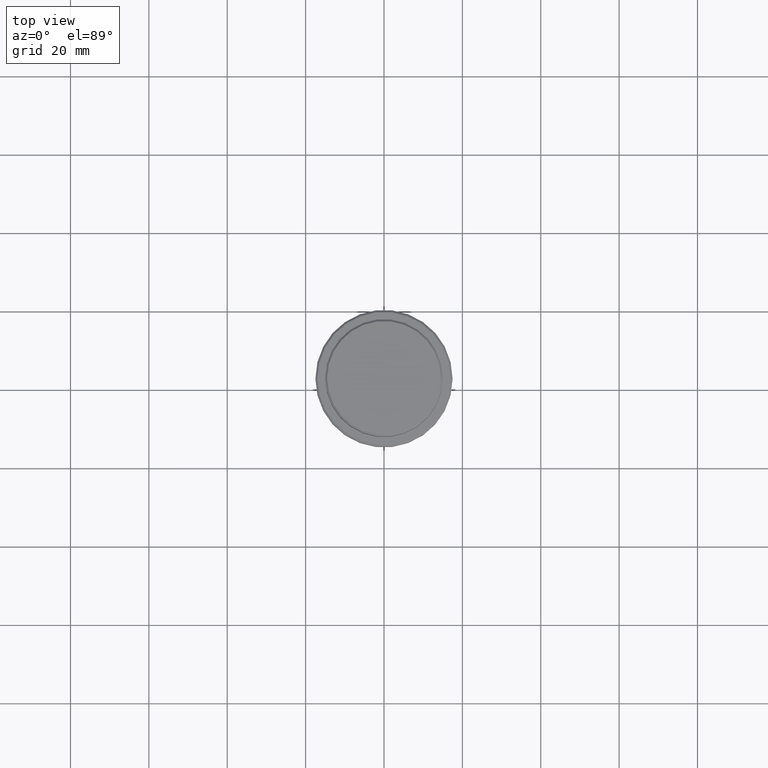
[diagram: clean part render]
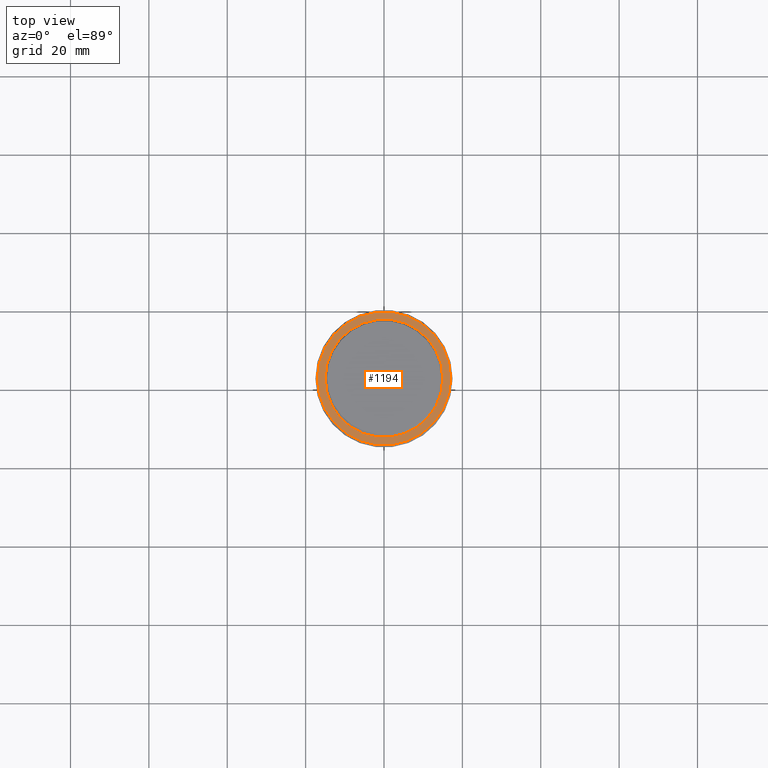
[diagram: same view with one face highlighted and labeled with its STEP entity id]
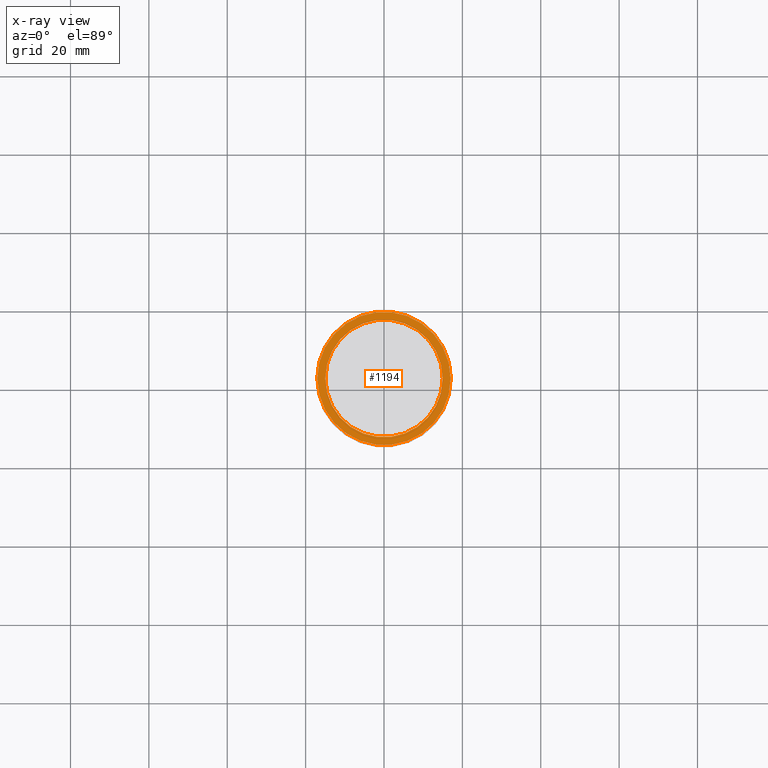
[diagram: x-ray of the same camera — body ghosted, the highlighted face saturated]
A machine part, top view. The second image highlights one B-rep face of the part: STEP entity #1194.
The next image is the same camera in x-ray: the body ghosted, the highlighted face saturated — about 0% of this face is hidden behind the body in this view.
In plain terms, the highlighted planar face has unit normal (0, -0, 1).
Its self-contained STEP definition (entity closure, byte-faithful):
#6 = VERTEX_POINT ( 'NONE', #531 ) ;
#27 = CARTESIAN_POINT ( 'NONE',  ( 0.000000000000000000, 0.000000000000000000, -9.000000000000000000 ) ) ;
#54 = CARTESIAN_POINT ( 'NONE',  ( 17.00000000000001421, 2.112515728529185250E-15, -9.000000000000000000 ) ) ;
#58 = EDGE_CURVE ( 'NONE', #6, #87, #627, .T. ) ;
#81 = CARTESIAN_POINT ( 'NONE',  ( 0.000000000000000000, 0.000000000000000000, -9.000000000000000000 ) ) ;
#87 = VERTEX_POINT ( 'NONE', #835 ) ;
#89 = DIRECTION ( 'NONE',  ( 0.000000000000000000, 0.000000000000000000, -1.000000000000000000 ) ) ;
#102 = ORIENTED_EDGE ( 'NONE', *, *, #1162, .T. ) ;
#148 = VERTEX_POINT ( 'NONE', #54 ) ;
#211 = DIRECTION ( 'NONE',  ( -0.000000000000000000, -0.000000000000000000, 1.000000000000000000 ) ) ;
#336 = DIRECTION ( 'NONE',  ( -0.000000000000000000, -0.000000000000000000, 1.000000000000000000 ) ) ;
#374 = CARTESIAN_POINT ( 'NONE',  ( -17.00000000000001421, 0.000000000000000000, -9.000000000000000000 ) ) ;
#381 = VERTEX_POINT ( 'NONE', #374 ) ;
#430 = DIRECTION ( 'NONE',  ( 1.000000000000000000, 0.000000000000000000, 0.000000000000000000 ) ) ;
#432 = CIRCLE ( 'NONE', #646, 17.00000000000001421 ) ;
#475 = AXIS2_PLACEMENT_3D ( 'NONE', #555, #1407, #1084 ) ;
#531 = CARTESIAN_POINT ( 'NONE',  ( 14.99999999999999289, 0.000000000000000000, -9.000000000000000000 ) ) ;
#538 = FACE_OUTER_BOUND ( 'NONE', #1212, .T. ) ;
#551 = PLANE ( 'NONE',  #475 ) ;
#555 = CARTESIAN_POINT ( 'NONE',  ( 0.000000000000000000, 14.49999999999999467, -9.000000000000000000 ) ) ;
#585 = EDGE_LOOP ( 'NONE', ( #1080, #1331 ) ) ;
#627 = CIRCLE ( 'NONE', #768, 14.99999999999999289 ) ;
#634 = CARTESIAN_POINT ( 'NONE',  ( 0.000000000000000000, 0.000000000000000000, -9.000000000000000000 ) ) ;
#646 = AXIS2_PLACEMENT_3D ( 'NONE', #1191, #211, #1217 ) ;
#651 = DIRECTION ( 'NONE',  ( 1.000000000000000000, 0.000000000000000000, 0.000000000000000000 ) ) ;
#700 = AXIS2_PLACEMENT_3D ( 'NONE', #27, #1231, #1031 ) ;
#724 = CIRCLE ( 'NONE', #700, 14.99999999999999289 ) ;
#768 = AXIS2_PLACEMENT_3D ( 'NONE', #81, #89, #651 ) ;
#796 = AXIS2_PLACEMENT_3D ( 'NONE', #634, #336, #430 ) ;
#835 = CARTESIAN_POINT ( 'NONE',  ( -14.99999999999999289, 1.836970198721028800E-15, -9.000000000000000000 ) ) ;
#1031 = DIRECTION ( 'NONE',  ( 1.000000000000000000, 0.000000000000000000, 0.000000000000000000 ) ) ;
#1080 = ORIENTED_EDGE ( 'NONE', *, *, #58, .T. ) ;
#1084 = DIRECTION ( 'NONE',  ( 1.000000000000000000, 0.000000000000000000, 0.000000000000000000 ) ) ;
#1094 = CIRCLE ( 'NONE', #796, 17.00000000000001421 ) ;
#1162 = EDGE_CURVE ( 'NONE', #381, #148, #432, .T. ) ;
#1171 = EDGE_CURVE ( 'NONE', #148, #381, #1094, .T. ) ;
#1191 = CARTESIAN_POINT ( 'NONE',  ( 0.000000000000000000, 0.000000000000000000, -9.000000000000000000 ) ) ;
#1194 = ADVANCED_FACE ( 'NONE', ( #538, #1301 ), #551, .T. ) ;
#1212 = EDGE_LOOP ( 'NONE', ( #102, #1311 ) ) ;
#1217 = DIRECTION ( 'NONE',  ( 1.000000000000000000, 0.000000000000000000, 0.000000000000000000 ) ) ;
#1231 = DIRECTION ( 'NONE',  ( 0.000000000000000000, 0.000000000000000000, -1.000000000000000000 ) ) ;
#1301 = FACE_BOUND ( 'NONE', #585, .T. ) ;
#1311 = ORIENTED_EDGE ( 'NONE', *, *, #1171, .T. ) ;
#1331 = ORIENTED_EDGE ( 'NONE', *, *, #1370, .T. ) ;
#1370 = EDGE_CURVE ( 'NONE', #87, #6, #724, .T. ) ;
#1407 = DIRECTION ( 'NONE',  ( 0.000000000000000000, -0.000000000000000000, 1.000000000000000000 ) ) ;